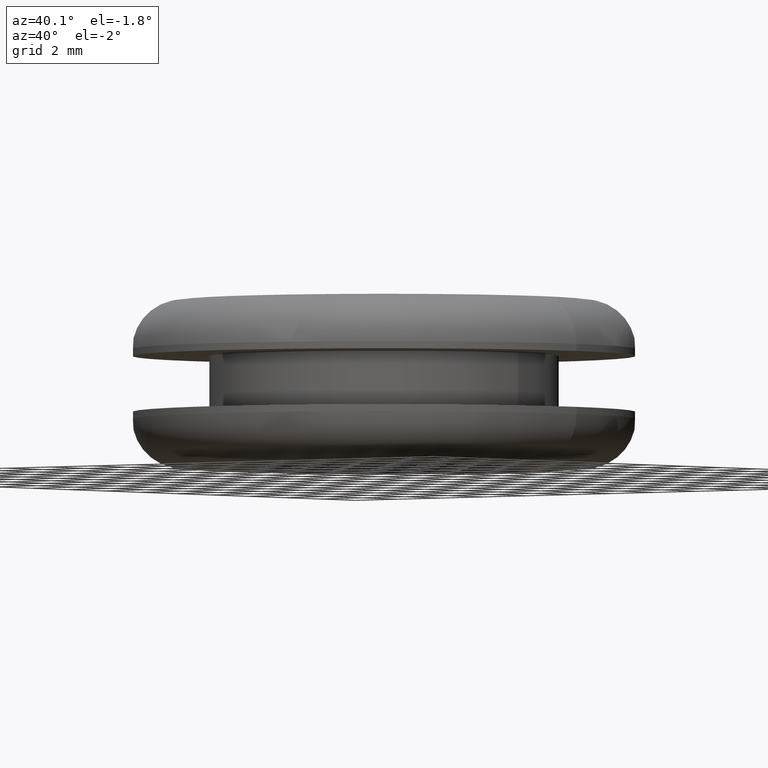
[diagram: clean part render]
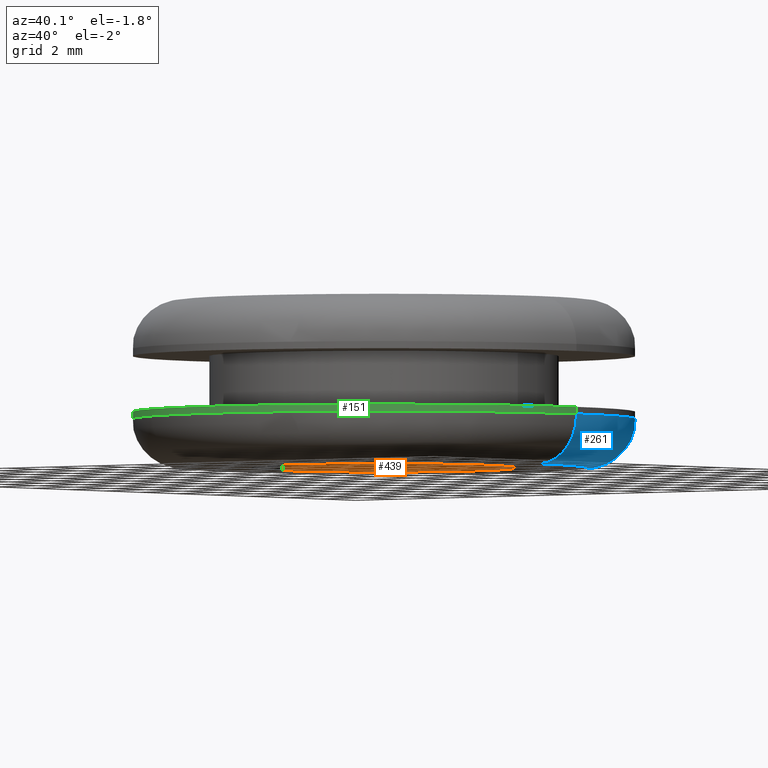
[diagram: same view with three faces highlighted in distinct colors, each labeled with its STEP entity id]
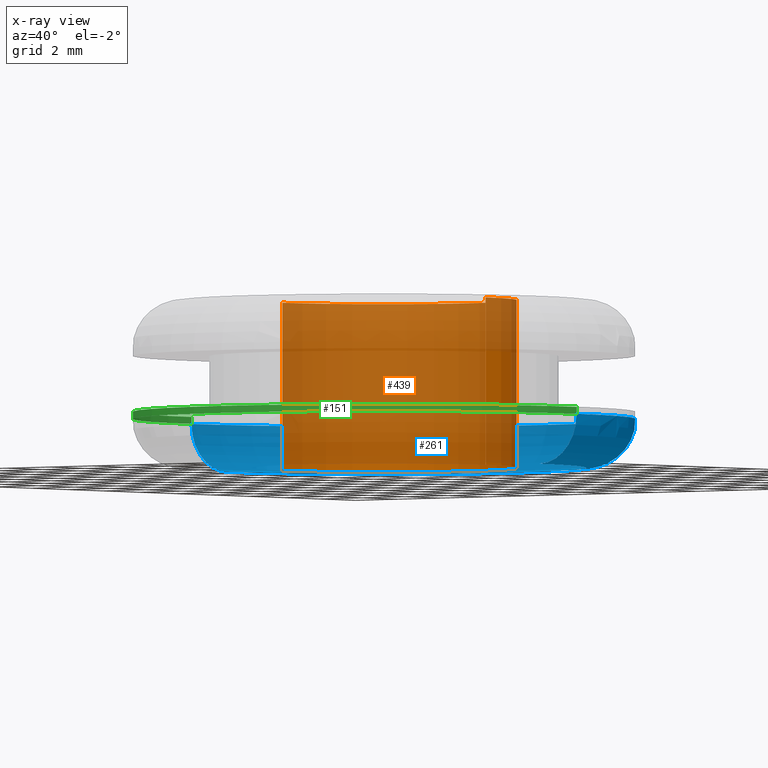
[diagram: x-ray of the same camera — body ghosted, the three highlighted faces saturated]
A machine part, auxiliary view with three faces highlighted in distinct colors.
The next image is the same camera in x-ray (body ghosted, the three faces saturated) — at least one of them is partly hidden behind the body in this view.
Their STEP definitions:

[orange] entity #439 — the highlighted cylindrical surface (partial cylindrical patch) has radius 4.75 mm, axis along (0, 0, -1).
#4 = VERTEX_POINT ( 'NONE', #65 ) ;
#12 = CARTESIAN_POINT ( 'NONE',  ( 105.2589284890372000, 5.817072295976868000E-016, 135.6288681965060100 ) ) ;
#15 = AXIS2_PLACEMENT_3D ( 'NONE', #319, #433, #477 ) ;
#16 = CYLINDRICAL_SURFACE ( 'NONE', #456, 4.750000000022000200 ) ;
#46 = VERTEX_POINT ( 'NONE', #366 ) ;
#48 = ORIENTED_EDGE ( 'NONE', *, *, #308, .F. ) ;
#52 = CARTESIAN_POINT ( 'NONE',  ( 100.5089284890152000, 0.0000000000000000000, 0.0000000000000000000 ) ) ;
#59 = VECTOR ( 'NONE', #162, 1000.000000000000000 ) ;
#64 = EDGE_CURVE ( 'NONE', #259, #4, #401, .T. ) ;
#65 = CARTESIAN_POINT ( 'NONE',  ( 105.2589284890372000, 5.817072295976868000E-016, 129.6288681965059800 ) ) ;
#71 = EDGE_CURVE ( 'NONE', #88, #4, #339, .T. ) ;
#84 = CARTESIAN_POINT ( 'NONE',  ( 95.75892848899320600, 0.0000000000000000000, 129.6288681965059800 ) ) ;
#85 = EDGE_LOOP ( 'NONE', ( #234, #48, #137, #271 ) ) ;
#88 = VERTEX_POINT ( 'NONE', #84 ) ;
#109 = DIRECTION ( 'NONE',  ( -1.000000000000000000, 0.0000000000000000000, 0.0000000000000000000 ) ) ;
#137 = ORIENTED_EDGE ( 'NONE', *, *, #437, .T. ) ;
#140 = CARTESIAN_POINT ( 'NONE',  ( 100.5089284890152000, 0.0000000000000000000, 135.6288681965060100 ) ) ;
#162 = DIRECTION ( 'NONE',  ( 0.0000000000000000000, 0.0000000000000000000, -1.000000000000000000 ) ) ;
#165 = AXIS2_PLACEMENT_3D ( 'NONE', #140, #361, #109 ) ;
#167 = LINE ( 'NONE', #386, #408 ) ;
#213 = FACE_OUTER_BOUND ( 'NONE', #85, .T. ) ;
#234 = ORIENTED_EDGE ( 'NONE', *, *, #64, .F. ) ;
#259 = VERTEX_POINT ( 'NONE', #12 ) ;
#266 = CIRCLE ( 'NONE', #165, 4.750000000022000200 ) ;
#271 = ORIENTED_EDGE ( 'NONE', *, *, #71, .T. ) ;
#278 = DIRECTION ( 'NONE',  ( -1.000000000000000000, 0.0000000000000000000, 0.0000000000000000000 ) ) ;
#281 = DIRECTION ( 'NONE',  ( 0.0000000000000000000, 0.0000000000000000000, -1.000000000000000000 ) ) ;
#292 = CARTESIAN_POINT ( 'NONE',  ( 105.2589284890372000, 5.817072295976869000E-016, 0.0000000000000000000 ) ) ;
#308 = EDGE_CURVE ( 'NONE', #46, #259, #266, .T. ) ;
#319 = CARTESIAN_POINT ( 'NONE',  ( 100.5089284890152000, 0.0000000000000000000, 129.6288681965059800 ) ) ;
#339 = CIRCLE ( 'NONE', #15, 4.750000000022000200 ) ;
#351 = DIRECTION ( 'NONE',  ( 0.0000000000000000000, 0.0000000000000000000, -1.000000000000000000 ) ) ;
#361 = DIRECTION ( 'NONE',  ( 0.0000000000000000000, 0.0000000000000000000, -1.000000000000000000 ) ) ;
#366 = CARTESIAN_POINT ( 'NONE',  ( 95.75892848899320600, 0.0000000000000000000, 135.6288681965060100 ) ) ;
#386 = CARTESIAN_POINT ( 'NONE',  ( 95.75892848899320600, 0.0000000000000000000, 0.0000000000000000000 ) ) ;
#401 = LINE ( 'NONE', #292, #59 ) ;
#408 = VECTOR ( 'NONE', #351, 1000.000000000000000 ) ;
#433 = DIRECTION ( 'NONE',  ( 0.0000000000000000000, 0.0000000000000000000, -1.000000000000000000 ) ) ;
#437 = EDGE_CURVE ( 'NONE', #46, #88, #167, .T. ) ;
#439 = ADVANCED_FACE ( 'NONE', ( #213 ), #16, .F. ) ;
#456 = AXIS2_PLACEMENT_3D ( 'NONE', #52, #281, #278 ) ;
#477 = DIRECTION ( 'NONE',  ( -1.000000000000000000, 0.0000000000000000000, 0.0000000000000000000 ) ) ;

[blue] entity #261 — the highlighted toroidal blend (fillet) surface has major radius 7.25 mm and minor (blend) radius 1.75 mm.
#19 = TOROIDAL_SURFACE ( 'NONE', #277, 7.250000000022000200, 1.750000000000000000 ) ;
#23 = CARTESIAN_POINT ( 'NONE',  ( 100.5089284890152000, 0.0000000000000000000, 131.3788681965059800 ) ) ;
#35 = ORIENTED_EDGE ( 'NONE', *, *, #365, .T. ) ;
#57 = CARTESIAN_POINT ( 'NONE',  ( 100.5089284890152000, 0.0000000000000000000, 129.6288681965059800 ) ) ;
#97 = DIRECTION ( 'NONE',  ( 0.0000000000000000000, 0.0000000000000000000, -1.000000000000000000 ) ) ;
#99 = CARTESIAN_POINT ( 'NONE',  ( 107.7589284890372000, 8.878689293845252600E-016, 131.3788681965059800 ) ) ;
#102 = CARTESIAN_POINT ( 'NONE',  ( 107.7589284890372000, 9.950255243099186200E-016, 129.6288681965059800 ) ) ;
#114 = AXIS2_PLACEMENT_3D ( 'NONE', #23, #287, #252 ) ;
#129 = CIRCLE ( 'NONE', #357, 1.750000000000001600 ) ;
#130 = DIRECTION ( 'NONE',  ( -1.000000000000000000, 0.0000000000000000000, 0.0000000000000000000 ) ) ;
#143 = DIRECTION ( 'NONE',  ( -0.0000000000000000000, -1.000000000000000000, -0.0000000000000000000 ) ) ;
#172 = VERTEX_POINT ( 'NONE', #438 ) ;
#178 = VERTEX_POINT ( 'NONE', #294 ) ;
#180 = CIRCLE ( 'NONE', #114, 9.000000000022003700 ) ;
#194 = VERTEX_POINT ( 'NONE', #301 ) ;
#198 = DIRECTION ( 'NONE',  ( -1.000000000000000000, 0.0000000000000000000, 0.0000000000000000000 ) ) ;
#205 = ORIENTED_EDGE ( 'NONE', *, *, #314, .T. ) ;
#206 = AXIS2_PLACEMENT_3D ( 'NONE', #99, #424, #388 ) ;
#225 = CIRCLE ( 'NONE', #382, 7.250000000022002800 ) ;
#252 = DIRECTION ( 'NONE',  ( -1.000000000000000000, 0.0000000000000000000, 0.0000000000000000000 ) ) ;
#253 = CIRCLE ( 'NONE', #206, 1.750000000000001600 ) ;
#261 = ADVANCED_FACE ( 'NONE', ( #398 ), #19, .T. ) ;
#275 = DIRECTION ( 'NONE',  ( 0.0000000000000000000, 0.0000000000000000000, -1.000000000000000000 ) ) ;
#277 = AXIS2_PLACEMENT_3D ( 'NONE', #345, #275, #198 ) ;
#287 = DIRECTION ( 'NONE',  ( 0.0000000000000000000, 0.0000000000000000000, -1.000000000000000000 ) ) ;
#294 = CARTESIAN_POINT ( 'NONE',  ( 91.50892848899319200, 0.0000000000000000000, 131.3788681965059800 ) ) ;
#301 = CARTESIAN_POINT ( 'NONE',  ( 93.25892848899319200, 0.0000000000000000000, 129.6288681965059800 ) ) ;
#314 = EDGE_CURVE ( 'NONE', #178, #172, #180, .T. ) ;
#329 = EDGE_LOOP ( 'NONE', ( #205, #35, #441, #450 ) ) ;
#345 = CARTESIAN_POINT ( 'NONE',  ( 100.5089284890152000, 0.0000000000000000000, 131.3788681965059800 ) ) ;
#356 = VERTEX_POINT ( 'NONE', #102 ) ;
#357 = AXIS2_PLACEMENT_3D ( 'NONE', #363, #143, #396 ) ;
#363 = CARTESIAN_POINT ( 'NONE',  ( 93.25892848899319200, 0.0000000000000000000, 131.3788681965059800 ) ) ;
#365 = EDGE_CURVE ( 'NONE', #172, #356, #253, .T. ) ;
#382 = AXIS2_PLACEMENT_3D ( 'NONE', #57, #97, #130 ) ;
#388 = DIRECTION ( 'NONE',  ( -1.000000000000000000, -1.224646799147352200E-016, 0.0000000000000000000 ) ) ;
#396 = DIRECTION ( 'NONE',  ( 0.0000000000000000000, 0.0000000000000000000, -1.000000000000000000 ) ) ;
#398 = FACE_OUTER_BOUND ( 'NONE', #329, .T. ) ;
#412 = EDGE_CURVE ( 'NONE', #194, #356, #225, .T. ) ;
#424 = DIRECTION ( 'NONE',  ( -1.224646799147353200E-016, 1.000000000000000000, 0.0000000000000000000 ) ) ;
#438 = CARTESIAN_POINT ( 'NONE',  ( 109.5089284890372000, 1.102182119235312100E-015, 131.3788681965059800 ) ) ;
#441 = ORIENTED_EDGE ( 'NONE', *, *, #412, .F. ) ;
#450 = ORIENTED_EDGE ( 'NONE', *, *, #463, .F. ) ;
#463 = EDGE_CURVE ( 'NONE', #178, #194, #129, .T. ) ;

[green] entity #151 — the highlighted cylindrical surface (partial cylindrical patch) has radius 9 mm, axis along (0, 0, -1).
#1 = DIRECTION ( 'NONE',  ( -1.000000000000000000, 0.0000000000000000000, 0.0000000000000000000 ) ) ;
#9 = EDGE_CURVE ( 'NONE', #172, #178, #96, .T. ) ;
#13 = ORIENTED_EDGE ( 'NONE', *, *, #291, .F. ) ;
#25 = CARTESIAN_POINT ( 'NONE',  ( 100.5089284890152000, 0.0000000000000000000, 131.6288681965059800 ) ) ;
#38 = CARTESIAN_POINT ( 'NONE',  ( 100.5089284890152000, 0.0000000000000000000, 0.0000000000000000000 ) ) ;
#42 = VERTEX_POINT ( 'NONE', #217 ) ;
#69 = DIRECTION ( 'NONE',  ( -1.000000000000000000, 0.0000000000000000000, 0.0000000000000000000 ) ) ;
#78 = AXIS2_PLACEMENT_3D ( 'NONE', #38, #149, #1 ) ;
#80 = VECTOR ( 'NONE', #342, 1000.000000000000000 ) ;
#96 = CIRCLE ( 'NONE', #348, 9.000000000022003700 ) ;
#119 = CIRCLE ( 'NONE', #428, 9.000000000022003700 ) ;
#139 = DIRECTION ( 'NONE',  ( 0.0000000000000000000, 0.0000000000000000000, -1.000000000000000000 ) ) ;
#149 = DIRECTION ( 'NONE',  ( 0.0000000000000000000, 0.0000000000000000000, -1.000000000000000000 ) ) ;
#151 = ADVANCED_FACE ( 'NONE', ( #410 ), #207, .T. ) ;
#154 = VECTOR ( 'NONE', #473, 1000.000000000000000 ) ;
#168 = CARTESIAN_POINT ( 'NONE',  ( 91.50892848899319200, 0.0000000000000000000, 131.6288681965059800 ) ) ;
#172 = VERTEX_POINT ( 'NONE', #438 ) ;
#173 = ORIENTED_EDGE ( 'NONE', *, *, #440, .T. ) ;
#178 = VERTEX_POINT ( 'NONE', #294 ) ;
#187 = EDGE_LOOP ( 'NONE', ( #13, #173, #375, #427 ) ) ;
#207 = CYLINDRICAL_SURFACE ( 'NONE', #78, 9.000000000022003700 ) ;
#217 = CARTESIAN_POINT ( 'NONE',  ( 109.5089284890372000, 1.102182119235311300E-015, 131.6288681965059800 ) ) ;
#232 = CARTESIAN_POINT ( 'NONE',  ( 109.5089284890372000, 1.102182119235311900E-015, 0.0000000000000000000 ) ) ;
#288 = DIRECTION ( 'NONE',  ( 0.0000000000000000000, 0.0000000000000000000, -1.000000000000000000 ) ) ;
#291 = EDGE_CURVE ( 'NONE', #42, #172, #469, .T. ) ;
#294 = CARTESIAN_POINT ( 'NONE',  ( 91.50892848899319200, 0.0000000000000000000, 131.3788681965059800 ) ) ;
#297 = VERTEX_POINT ( 'NONE', #168 ) ;
#337 = EDGE_CURVE ( 'NONE', #297, #178, #429, .T. ) ;
#342 = DIRECTION ( 'NONE',  ( 0.0000000000000000000, 0.0000000000000000000, -1.000000000000000000 ) ) ;
#348 = AXIS2_PLACEMENT_3D ( 'NONE', #360, #139, #393 ) ;
#360 = CARTESIAN_POINT ( 'NONE',  ( 100.5089284890152000, 0.0000000000000000000, 131.3788681965059800 ) ) ;
#375 = ORIENTED_EDGE ( 'NONE', *, *, #337, .T. ) ;
#393 = DIRECTION ( 'NONE',  ( -1.000000000000000000, 0.0000000000000000000, 0.0000000000000000000 ) ) ;
#395 = CARTESIAN_POINT ( 'NONE',  ( 91.50892848899319200, 0.0000000000000000000, 0.0000000000000000000 ) ) ;
#410 = FACE_OUTER_BOUND ( 'NONE', #187, .T. ) ;
#427 = ORIENTED_EDGE ( 'NONE', *, *, #9, .F. ) ;
#428 = AXIS2_PLACEMENT_3D ( 'NONE', #25, #288, #69 ) ;
#429 = LINE ( 'NONE', #395, #154 ) ;
#438 = CARTESIAN_POINT ( 'NONE',  ( 109.5089284890372000, 1.102182119235312100E-015, 131.3788681965059800 ) ) ;
#440 = EDGE_CURVE ( 'NONE', #42, #297, #119, .T. ) ;
#469 = LINE ( 'NONE', #232, #80 ) ;
#473 = DIRECTION ( 'NONE',  ( 0.0000000000000000000, 0.0000000000000000000, -1.000000000000000000 ) ) ;